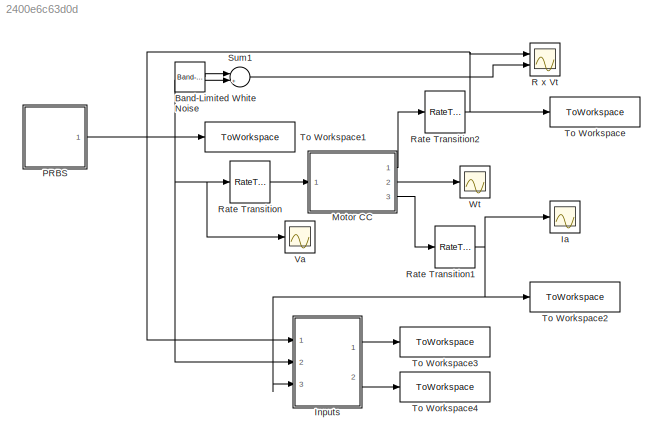
MODEL slx_2400e6c63d0d
KIND model
CONFIG AbsTol = auto
CONFIG EnableMultiTasking = off
CONFIG FixedStep = auto
CONFIG MaxStep = auto
CONFIG MinStep = auto
CONFIG RelTol = 1e-3
CONFIG SampleTimeConstraint = Unconstrained
CONFIG SolverName = VariableStepAuto
CONFIG StartTime = 0.0
CONFIG StopTime = 10
BLOCK [Reference] Band-Limited White Noise  REF=simulink/Sources/Band-Limited
White Noise
  Ports = [0, 1]
  SourceBlock = simulink/Sources/Band-Limited\nWhite Noise
  SourceProductBaseCode = SL
  SourceType = Band-Limited White Noise.
BLOCK [Scope] Ia
  Floating = off
  NumInputPorts = 1
  Ports = [1]
  ScopeSpecificationString = Simulink.scopes.TimeScopeBlockCfg('CurrentConfiguration', extmgr.ConfigurationSet(extmgr.Configuration('Core','General UI',true),extmgr.Configuration('Core','Source UI',true),extmgr.Configuration('Sources','WiredSimulink',true,'DataLoggingVariableName','ScopeData2'),extmgr.Configuration('Visuals','Time Domain',true,'SerializedDisplays',{struct('MinYLimReal','-4.00899','MaxYLimReal','6.81793','YLab...<+1448ch>
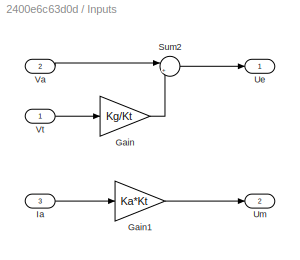
BLOCK [SubSystem] Inputs
  Ports = [3, 2]
  RequestExecContextInheritance = off
BLOCK [Gain] Inputs/Gain
  Gain = Kg/Kt
BLOCK [Gain] Inputs/Gain1
  Gain = Ka*Kt
BLOCK [Inport] Inputs/Ia
  Port = 3
BLOCK [Sum] Inputs/Sum2
  Inputs = |+-
  Ports = [2, 1]
BLOCK [Outport] Inputs/Ue
BLOCK [Outport] Inputs/Um
  Port = 2
BLOCK [Inport] Inputs/Va
  Port = 2
BLOCK [Inport] Inputs/Vt
  NameLocation = top
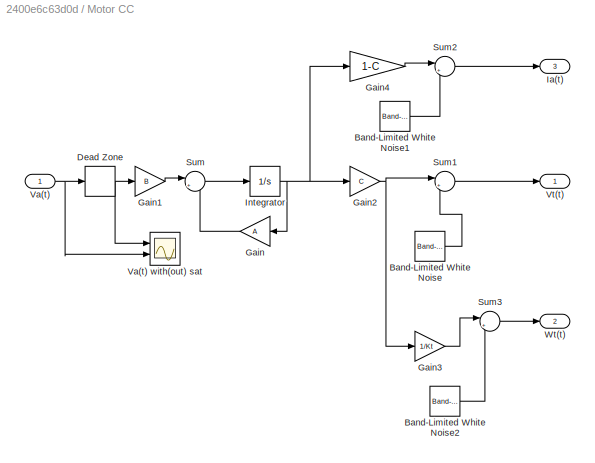
BLOCK [SubSystem] Motor CC
  Ports = [1, 3]
  RequestExecContextInheritance = off
BLOCK [Reference] Motor CC/Band-Limited White Noise  REF=simulink/Sources/Band-Limited
White Noise
  Ports = [0, 1]
  SourceBlock = simulink/Sources/Band-Limited\nWhite Noise
  SourceProductBaseCode = SL
  SourceType = Band-Limited White Noise.
BLOCK [Reference] Motor CC/Band-Limited White Noise1  REF=simulink/Sources/Band-Limited
White Noise
  Ports = [0, 1]
  SourceBlock = simulink/Sources/Band-Limited\nWhite Noise
  SourceProductBaseCode = SL
  SourceType = Band-Limited White Noise.
BLOCK [Reference] Motor CC/Band-Limited White Noise2  REF=simulink/Sources/Band-Limited
White Noise
  Ports = [0, 1]
  SourceBlock = simulink/Sources/Band-Limited\nWhite Noise
  SourceProductBaseCode = SL
  SourceType = Band-Limited White Noise.
BLOCK [DeadZone] Motor CC/Dead Zone
  LowerValue = 0
  UpperValue = 0
BLOCK [Gain] Motor CC/Gain
  Gain = A
  Multiplication = Matrix(K*u)
  NameLocation = top
BLOCK [Gain] Motor CC/Gain1
  Gain = B
  Multiplication = Matrix(K*u)
BLOCK [Gain] Motor CC/Gain2
  Gain = C
  Multiplication = Matrix(K*u)
BLOCK [Gain] Motor CC/Gain3
  Gain = 1/Kt
BLOCK [Gain] Motor CC/Gain4
  Gain = 1-C
  Multiplication = Matrix(K*u)
BLOCK [Outport] Motor CC/Ia(t)
  Port = 3
BLOCK [Integrator] Motor CC/Integrator
  InitialCondition = x0
  Ports = [1, 1]
BLOCK [Sum] Motor CC/Sum
  Inputs = |++
  Ports = [2, 1]
BLOCK [Sum] Motor CC/Sum1
  Inputs = |++
  Ports = [2, 1]
BLOCK [Sum] Motor CC/Sum2
  Inputs = |++
  Ports = [2, 1]
BLOCK [Sum] Motor CC/Sum3
  Inputs = |++
  Ports = [2, 1]
BLOCK [Inport] Motor CC/Va(t)
BLOCK [Scope] Motor CC/Va(t) with(out) sat
  Floating = off
  NumInputPorts = 2
  Ports = [2]
  ScopeSpecificationString = Simulink.scopes.TimeScopeBlockCfg('CurrentConfiguration', extmgr.ConfigurationSet(extmgr.Configuration('Core','General UI',true),extmgr.Configuration('Core','Source UI',true),extmgr.Configuration('Sources','WiredSimulink',true,'DataLoggingVariableName','ScopeData1'),extmgr.Configuration('Visuals','Time Domain',true,'SerializedDisplays',{struct('MinYLimReal','4.23175','MaxYLimReal','4.26068','YLabe...<+1418ch>
BLOCK [Outport] Motor CC/Vt(t)
BLOCK [Outport] Motor CC/Wt(t)
  Port = 2
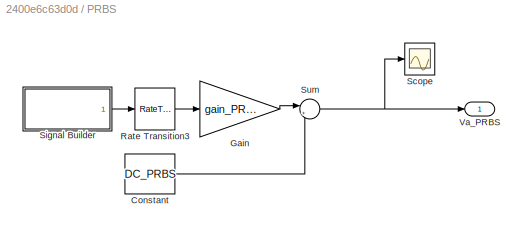
BLOCK [SubSystem] PRBS
  Ports = [0, 1]
  RequestExecContextInheritance = off
BLOCK [Constant] PRBS/Constant
  Value = DC_PRBS
BLOCK [Gain] PRBS/Gain
  Gain = gain_PRBS
BLOCK [RateTransition] PRBS/Rate Transition3
  OutPortSampleTime = h
BLOCK [Scope] PRBS/Scope
  Floating = off
  NumInputPorts = 1
  Ports = [1]
  ScopeSpecificationString = Simulink.scopes.TimeScopeBlockCfg('CurrentConfiguration', extmgr.ConfigurationSet(extmgr.Configuration('Core','General UI',true),extmgr.Configuration('Core','Source UI',true),extmgr.Configuration('Sources','WiredSimulink',true,'DataLoggingVariableName','ScopeData1'),extmgr.Configuration('Visuals','Time Domain',true,'SerializedDisplays',{struct('MinYLimReal','2.75','MaxYLimReal','15.25','YLabelReal...<+1340ch>
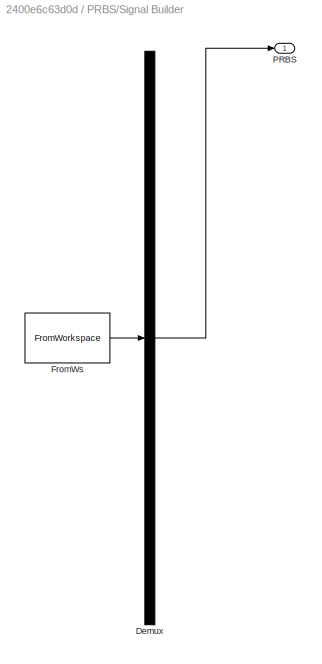
BLOCK [SubSystem] PRBS/Signal Builder
  ClipboardFcn = sigbuilder_block('clipboard');
  CloseFcn = sigbuilder_block('close');
  ContinueFcn = sigbuilder_block('continue');
  CopyFcn = sigbuilder_block('copy');
  DeleteFcn = sigbuilder_block('delete');
  LoadFcn = sigbuilder_block('load');
  MaskHideContents = on
  ModelCloseFcn = sigbuilder_block('modelClose');
  NameChangeFcn = sigbuilder_block('namechange');
  OpenFcn = sigbuilder_block('open',[437.6 199.2 550.4 400 ]);
  PauseFcn = sigbuilder_block('pause');
  Ports = [0, 1]
  PreSaveFcn = sigbuilder_block('preSave');
  RequestExecContextInheritance = off
  StartFcn = sigbuilder_block('start');
  StopFcn = sigbuilder_block('stop');
  Tag = STV Subsys
BLOCK [Demux] PRBS/Signal Builder/Demux
  DisplayOption = none
  Outputs = 1
  Ports = [1, 1]
  Tag = STV Demux
BLOCK [FromWorkspace] PRBS/Signal Builder/FromWs
  Tag = STV FromWs
  VariableName = tuvar
BLOCK [Outport] PRBS/Signal Builder/PRBS
  Tag = STV Outport
BLOCK [Sum] PRBS/Sum
  Inputs = |++
  Ports = [2, 1]
BLOCK [Outport] PRBS/Va_PRBS
BLOCK [Scope] R x Vt
  Floating = off
  NumInputPorts = 2
  Ports = [2]
  ScopeSpecificationString = Simulink.scopes.TimeScopeBlockCfg('CurrentConfiguration', extmgr.ConfigurationSet(extmgr.Configuration('Core','General UI',true),extmgr.Configuration('Core','Source UI',true),extmgr.Configuration('Sources','WiredSimulink',true),extmgr.Configuration('Visuals','Time Domain',true,'SerializedDisplays',{struct('MinYLimReal','-2.00577','MaxYLimReal','18.05194','YLabelReal','','MinYLimMag','0.00000','Max...<+1419ch>
BLOCK [RateTransition] Rate Transition
  OutPortSampleTime = h_motor
BLOCK [RateTransition] Rate Transition1
  OutPortSampleTime = h
BLOCK [RateTransition] Rate Transition2
  OutPortSampleTime = h
BLOCK [Sum] Sum1
  Inputs = |++
  Ports = [2, 1]
BLOCK [ToWorkspace] To Workspace
  FixptAsFi = on
  MaxDataPoints = inf
  Ports = [1]
  SampleTime = -1
  SaveFormat = Structure With Time
  VariableName = Vt
BLOCK [ToWorkspace] To Workspace1
  FixptAsFi = on
  MaxDataPoints = inf
  Ports = [1]
  SampleTime = -1
  SaveFormat = Structure With Time
  VariableName = Va_PRBS
BLOCK [ToWorkspace] To Workspace2
  FixptAsFi = on
  MaxDataPoints = inf
  Ports = [1]
  SampleTime = -1
  SaveFormat = Structure With Time
  VariableName = Ia
BLOCK [ToWorkspace] To Workspace3
  FixptAsFi = on
  MaxDataPoints = inf
  Ports = [1]
  SampleTime = -1
  SaveFormat = Structure With Time
  VariableName = Ue
BLOCK [ToWorkspace] To Workspace4
  FixptAsFi = on
  MaxDataPoints = inf
  Ports = [1]
  SampleTime = -1
  SaveFormat = Structure With Time
  VariableName = Um
BLOCK [Scope] Va
  Floating = off
  NumInputPorts = 1
  Ports = [1]
  ScopeSpecificationString = Simulink.scopes.TimeScopeBlockCfg('CurrentConfiguration', extmgr.ConfigurationSet(extmgr.Configuration('Core','General UI',true),extmgr.Configuration('Core','Source UI',true),extmgr.Configuration('Sources','WiredSimulink',true,'DataLoggingVariableName','ScopeData1'),extmgr.Configuration('Visuals','Time Domain',true,'SerializedDisplays',{struct('MinYLimReal','-2.06101','MaxYLimReal','2.80121','YLab...<+1448ch>
BLOCK [Scope] Wt
  Floating = off
  NumInputPorts = 1
  Ports = [1]
  ScopeSpecificationString = Simulink.scopes.TimeScopeBlockCfg('CurrentConfiguration', extmgr.ConfigurationSet(extmgr.Configuration('Core','General UI',true),extmgr.Configuration('Core','Source UI',true),extmgr.Configuration('Sources','WiredSimulink',true,'DataLoggingVariableName','ScopeData2'),extmgr.Configuration('Visuals','Time Domain',true,'SerializedDisplays',{struct('MinYLimReal','-2.06101','MaxYLimReal','2.80121','YLab...<+1448ch>
LINE Band-Limited White Noise:1 -> Sum1:1
LINE Inputs/Gain1:1 -> Inputs/Um:1
LINE Inputs/Gain:1 -> Inputs/Sum2:2
LINE Inputs/Ia:1 -> Inputs/Gain1:1
LINE Inputs/Sum2:1 -> Inputs/Ue:1
LINE Inputs/Va:1 -> Inputs/Sum2:1
LINE Inputs/Vt:1 -> Inputs/Gain:1
LINE Inputs:1 -> To Workspace3:1
LINE Inputs:2 -> To Workspace4:1
LINE Motor CC/Band-Limited White Noise1:1 -> Motor CC/Sum2:2
LINE Motor CC/Band-Limited White Noise2:1 -> Motor CC/Sum3:2
LINE Motor CC/Band-Limited White Noise:1 -> Motor CC/Sum1:2
NET Motor CC/Dead Zone:1 -> Motor CC/Gain1:1, Motor CC/Va(t) with(out) sat:1
LINE Motor CC/Gain1:1 -> Motor CC/Sum:1
NET Motor CC/Gain2:1 -> Motor CC/Gain3:1, Motor CC/Sum1:1
LINE Motor CC/Gain3:1 -> Motor CC/Sum3:1
LINE Motor CC/Gain4:1 -> Motor CC/Sum2:1
LINE Motor CC/Gain:1 -> Motor CC/Sum:2
NET Motor CC/Integrator:1 -> Motor CC/Gain2:1, Motor CC/Gain4:1, Motor CC/Gain:1
LINE Motor CC/Sum1:1 -> Motor CC/Vt(t):1
LINE Motor CC/Sum2:1 -> Motor CC/Ia(t):1
LINE Motor CC/Sum3:1 -> Motor CC/Wt(t):1
LINE Motor CC/Sum:1 -> Motor CC/Integrator:1
NET Motor CC/Va(t):1 -> Motor CC/Dead Zone:1, Motor CC/Va(t) with(out) sat:2
LINE Motor CC:1 -> Rate Transition2:1
LINE Motor CC:2 -> Wt:1
LINE Motor CC:3 -> Rate Transition1:1
LINE PRBS/Constant:1 -> PRBS/Sum:2
LINE PRBS/Gain:1 -> PRBS/Sum:1
LINE PRBS/Rate Transition3:1 -> PRBS/Gain:1
LINE PRBS/Signal Builder:1 -> PRBS/Rate Transition3:1
NET PRBS/Sum:1 -> PRBS/Scope:1, PRBS/Va_PRBS:1
NET PRBS:1 -> Inputs:2, Rate Transition:1, Sum1:2, To Workspace1:1, Va:1
NET Rate Transition1:1 -> Ia:1, Inputs:3, To Workspace2:1
NET Rate Transition2:1 -> Inputs:1, R x Vt:1, To Workspace:1
LINE Rate Transition:1 -> Motor CC:1
LINE Sum1:1 -> R x Vt:2
note: NET lines group one-source signal fan-out (src -> all destinations, sorted); 1:1 wires keep LINE
